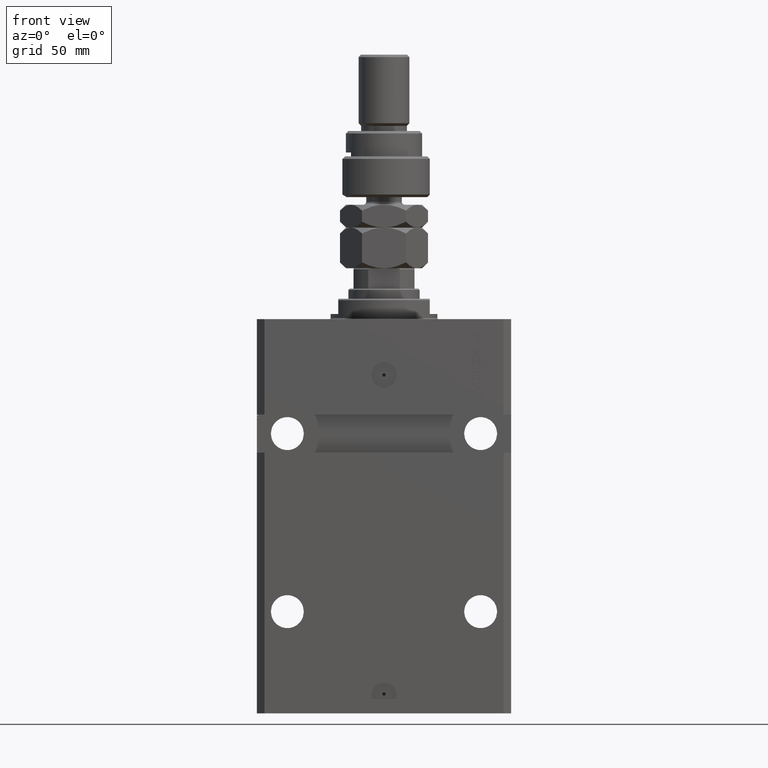
[diagram: clean part render]
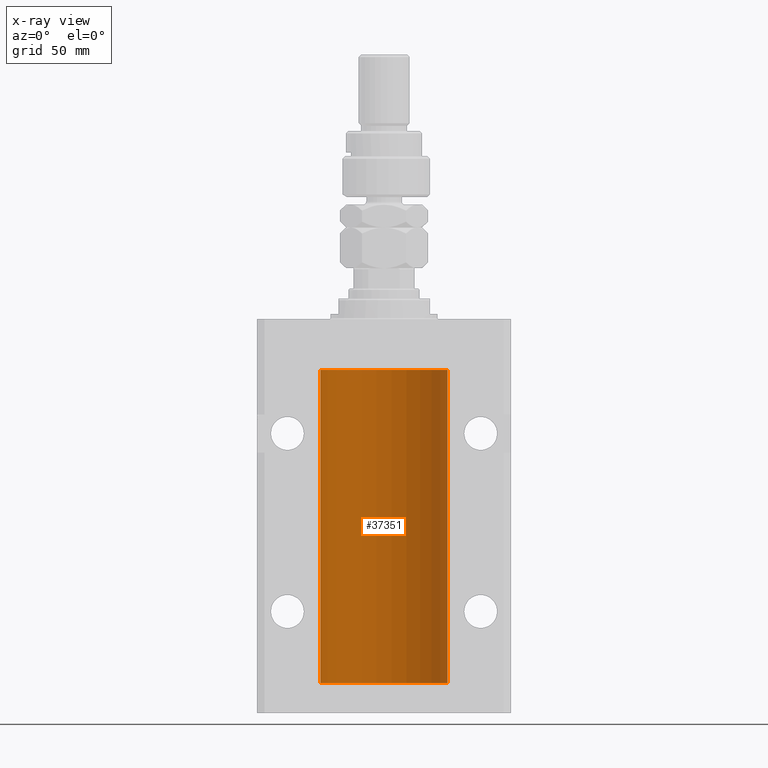
[diagram: x-ray — body ghosted, one internal face saturated and labeled with its STEP entity id]
A machine part, front view, then the same camera in x-ray: the body is ghosted and one INTERNAL B-rep face — a face not visible from any outside direction — is saturated and labeled: STEP entity #37351.
In plain terms, the highlighted cylindrical surface (partial cylindrical patch) has radius 25 mm, axis along (0, 0, 1).
Its self-contained STEP definition (entity closure, byte-faithful):
#88 = CARTESIAN_POINT ( 'NONE',  ( -25.00000000000000000, 3.061616997868383043E-15, -143.0999999999999943 ) ) ;
#330 = LINE ( 'NONE', #23541, #5642 ) ;
#1076 = EDGE_CURVE ( 'NONE', #25890, #24481, #26158, .T. ) ;
#1591 = CARTESIAN_POINT ( 'NONE',  ( -24.99402840204668408, 0.5587119681668532012, -25.32511555871104747 ) ) ;
#1836 = CARTESIAN_POINT ( 'NONE',  ( -25.00000000000000000, -9.603917560234690571E-15, -24.37500000000000000 ) ) ;
#2135 = CARTESIAN_POINT ( 'NONE',  ( -25.00000000000000000, -2.240465332326360227E-14, -139.8749999999999716 ) ) ;
#2296 = LINE ( 'NONE', #40059, #4495 ) ;
#2555 = VERTEX_POINT ( 'NONE', #42616 ) ;
#2622 = EDGE_LOOP ( 'NONE', ( #20381, #25508, #23748, #46782, #39872, #17711, #28426, #4560, #44794, #48523, #12035, #40864, #34065, #22913 ) ) ;
#3431 = DIRECTION ( 'NONE',  ( -0.000000000000000000, -0.000000000000000000, 1.000000000000000000 ) ) ;
#3442 = CARTESIAN_POINT ( 'NONE',  ( -25.00000000000008171, 3.517566533863564531E-13, -141.1250000000032685 ) ) ;
#3478 = EDGE_CURVE ( 'NONE', #36610, #31197, #27093, .T. ) ;
#4195 = DIRECTION ( 'NONE',  ( 0.000000000000000000, 0.000000000000000000, 1.000000000000000000 ) ) ;
#4495 = VECTOR ( 'NONE', #9244, 1000.000000000000000 ) ;
#4523 = CIRCLE ( 'NONE', #14774, 25.00000000000000000 ) ;
#4560 = ORIENTED_EDGE ( 'NONE', *, *, #27789, .T. ) ;
#4717 = VERTEX_POINT ( 'NONE', #37972 ) ;
#4921 = EDGE_CURVE ( 'NONE', #6316, #25890, #43834, .T. ) ;
#5331 = EDGE_CURVE ( 'NONE', #39972, #31479, #330, .T. ) ;
#5503 = CARTESIAN_POINT ( 'NONE',  ( 25.00000000000000000, 2.614778811499482268E-15, -141.1249999999999716 ) ) ;
#5642 = VECTOR ( 'NONE', #15412, 1000.000000000000000 ) ;
#5744 = CARTESIAN_POINT ( 'NONE',  ( 24.99405112861447620, 0.5574133879603465624, -140.8263877786897922 ) ) ;
#5779 = CARTESIAN_POINT ( 'NONE',  ( -24.99812965334069403, 0.3150303239408847600, -24.45401901831676383 ) ) ;
#6316 = VERTEX_POINT ( 'NONE', #9456 ) ;
#6456 = CARTESIAN_POINT ( 'NONE',  ( 24.99218627891505307, 0.6250000000082404084, -140.4999999999990337 ) ) ;
#6820 = DIRECTION ( 'NONE',  ( -0.000000000000000000, -0.000000000000000000, 1.000000000000000000 ) ) ;
#6839 = CARTESIAN_POINT ( 'NONE',  ( 25.00000000000000000, 2.614778811499482268E-15, -141.1249999999999716 ) ) ;
#7539 = B_SPLINE_CURVE_WITH_KNOTS ( 'NONE', 3,
 ( #5503, #9710, #39333, #39569, #20582, #5744, #28242, #27757 ),
 .UNSPECIFIED., .F., .F.,
 ( 4, 2, 2, 4 ),
 ( 2.541064289066469745E-18, 0.0002443193446654819763, 0.0004886386893309612421, 0.0009772773786619198821 ),
 .UNSPECIFIED. ) ;
#7844 = CARTESIAN_POINT ( 'NONE',  ( -24.99402840204668053, 0.5587119681668447635, -140.8251155587110190 ) ) ;
#8091 = CARTESIAN_POINT ( 'NONE',  ( -24.99815474281803063, 0.3253832813992108552, -141.0585560939375682 ) ) ;
#9244 = DIRECTION ( 'NONE',  ( -0.000000000000000000, -0.000000000000000000, 1.000000000000000000 ) ) ;
#9456 = CARTESIAN_POINT ( 'NONE',  ( 25.00000000000008171, 3.486950283966777142E-13, -24.37499999999673150 ) ) ;
#9498 = CARTESIAN_POINT ( 'NONE',  ( 24.99815573945175373, 0.3253059702579643164, -24.44140848432692081 ) ) ;
#9500 = CARTESIAN_POINT ( 'NONE',  ( -24.99218772708281477, 0.6249420913990341164, -24.83671206966754852 ) ) ;
#9710 = CARTESIAN_POINT ( 'NONE',  ( 25.00000000000000355, 0.08261259269783456649, -141.1249999999999716 ) ) ;
#10447 = CARTESIAN_POINT ( 'NONE',  ( -25.00000000000000000, 3.061616997868383043E-15, -143.0999999999999943 ) ) ;
#10739 = DIRECTION ( 'NONE',  ( -0.000000000000000000, -0.000000000000000000, 1.000000000000000000 ) ) ;
#10761 = EDGE_CURVE ( 'NONE', #32499, #2555, #32527, .T. ) ;
#10933 = CARTESIAN_POINT ( 'NONE',  ( 24.99218627891526268, 0.6249999999996136424, -140.3369677794013057 ) ) ;
#10958 = B_SPLINE_CURVE_WITH_KNOTS ( 'NONE', 3,
 ( #25042, #28275, #32209, #9498, #17159, #40077 ),
 .UNSPECIFIED., .F., .F.,
 ( 4, 2, 4 ),
 ( 0.0009772773786619066549, 0.001465694572771589731, 0.001954111766881272590 ),
 .UNSPECIFIED. ) ;
#11227 = CARTESIAN_POINT ( 'NONE',  ( 24.99711042419772156, 0.3844422150124101600, -25.49948233212517934 ) ) ;
#12035 = ORIENTED_EDGE ( 'NONE', *, *, #29499, .F. ) ;
#12786 = CARTESIAN_POINT ( 'NONE',  ( 25.00000000000000000, -1.442320223331113572E-15, -25.62500000000000355 ) ) ;
#12811 = CARTESIAN_POINT ( 'NONE',  ( 0.000000000000000000, 0.000000000000000000, -143.0999999999999943 ) ) ;
#13907 = VERTEX_POINT ( 'NONE', #30010 ) ;
#14774 = AXIS2_PLACEMENT_3D ( 'NONE', #12811, #35271, #29962 ) ;
#15124 = CARTESIAN_POINT ( 'NONE',  ( 24.99218627891505307, 0.6250000000082325258, -24.99999999999907629 ) ) ;
#15412 = DIRECTION ( 'NONE',  ( -0.000000000000000000, -0.000000000000000000, 1.000000000000000000 ) ) ;
#15758 = CARTESIAN_POINT ( 'NONE',  ( -25.00000000000000000, -2.240465332326360227E-14, -139.8749999999999716 ) ) ;
#15769 = CARTESIAN_POINT ( 'NONE',  ( 25.00000000000000000, -1.442320223331113572E-15, -25.62500000000000355 ) ) ;
#16762 = EDGE_CURVE ( 'NONE', #13907, #39330, #2296, .T. ) ;
#17159 = CARTESIAN_POINT ( 'NONE',  ( 24.99999999999999645, 0.1631302137355186421, -24.37500000000015277 ) ) ;
#17160 = CARTESIAN_POINT ( 'NONE',  ( -25.00000000000001421, 0.08259386895071110790, -24.37500000000000000 ) ) ;
#17273 = VECTOR ( 'NONE', #6820, 1000.000000000000000 ) ;
#17392 = CARTESIAN_POINT ( 'NONE',  ( -25.00000000000008171, 3.517566455281406338E-13, -25.62500000000326850 ) ) ;
#17711 = ORIENTED_EDGE ( 'NONE', *, *, #16762, .T. ) ;
#18513 = DIRECTION ( 'NONE',  ( 1.000000000000000000, 0.000000000000000000, 0.000000000000000000 ) ) ;
#19247 = CYLINDRICAL_SURFACE ( 'NONE', #47327, 25.00000000000000000 ) ;
#19514 = VERTEX_POINT ( 'NONE', #15124 ) ;
#20187 = CARTESIAN_POINT ( 'NONE',  ( -24.99957903978827289, 0.1636401650351609061, -139.8912625904797835 ) ) ;
#20381 = ORIENTED_EDGE ( 'NONE', *, *, #36984, .F. ) ;
#20582 = CARTESIAN_POINT ( 'NONE',  ( 24.99711042419772156, 0.3844422150124143789, -140.9994823321251260 ) ) ;
#20715 = VERTEX_POINT ( 'NONE', #10447 ) ;
#20923 = EDGE_CURVE ( 'NONE', #39972, #20715, #4523, .T. ) ;
#21591 = CARTESIAN_POINT ( 'NONE',  ( 24.99218627891525912, 0.6250000000003174128, -25.16310615504829684 ) ) ;
#22874 = CARTESIAN_POINT ( 'NONE',  ( -25.00000000000000000, 3.061616997868383043E-15, -143.0999999999999943 ) ) ;
#22913 = ORIENTED_EDGE ( 'NONE', *, *, #3478, .T. ) ;
#23164 = CARTESIAN_POINT ( 'NONE',  ( -25.00000000000001066, 0.08259386895069469048, -139.8750000000000000 ) ) ;
#23541 = CARTESIAN_POINT ( 'NONE',  ( 25.00000000000000000, 0.000000000000000000, -143.0999999999999943 ) ) ;
#23643 = CARTESIAN_POINT ( 'NONE',  ( -25.00000000000000355, 0.1631672031814576096, -141.1249999999998579 ) ) ;
#23748 = ORIENTED_EDGE ( 'NONE', *, *, #5331, .T. ) ;
#23918 = B_SPLINE_CURVE_WITH_KNOTS ( 'NONE', 3,
 ( #12786, #27856, #33705, #40835, #11227, #25797, #21591, #48718 ),
 .UNSPECIFIED., .F., .F.,
 ( 4, 2, 2, 4 ),
 ( 2.549843088221324396E-18, 0.0002443193446654768263, 0.0004886386893309511590, 0.0009772773786619066549 ),
 .UNSPECIFIED. ) ;
#24104 = CARTESIAN_POINT ( 'NONE',  ( 25.00000000000000000, 0.000000000000000000, -20.00000000000000355 ) ) ;
#24481 = VERTEX_POINT ( 'NONE', #27672 ) ;
#24554 = CARTESIAN_POINT ( 'NONE',  ( -24.99957903978827289, 0.1636401650351867743, -24.39126259047981904 ) ) ;
#25042 = CARTESIAN_POINT ( 'NONE',  ( 24.99218627891505307, 0.6250000000082325258, -24.99999999999907629 ) ) ;
#25508 = ORIENTED_EDGE ( 'NONE', *, *, #20923, .F. ) ;
#25797 = CARTESIAN_POINT ( 'NONE',  ( 24.99405112861447265, 0.5574133879603401232, -25.32638777868981705 ) ) ;
#25890 = VERTEX_POINT ( 'NONE', #24104 ) ;
#26158 = CIRCLE ( 'NONE', #48180, 25.00000000000000000 ) ;
#26262 = EDGE_CURVE ( 'NONE', #31479, #4717, #7539, .T. ) ;
#26472 = CARTESIAN_POINT ( 'NONE',  ( 24.99815573945175373, 0.3253059702579825241, -139.9414084843268711 ) ) ;
#26861 = CARTESIAN_POINT ( 'NONE',  ( -24.99812965334070114, 0.3150303239408628886, -139.9540190183167283 ) ) ;
#26883 = CARTESIAN_POINT ( 'NONE',  ( 0.000000000000000000, 0.000000000000000000, -143.0999999999999943 ) ) ;
#26946 = DIRECTION ( 'NONE',  ( -0.000000000000000000, -0.000000000000000000, 1.000000000000000000 ) ) ;
#27093 = B_SPLINE_CURVE_WITH_KNOTS ( 'NONE', 3,
 ( #15758, #23164, #20187, #26861, #38931, #46556, #41906, #45834, #7844, #8091, #23643, #30821 ),
 .UNSPECIFIED., .F., .F.,
 ( 4, 2, 2, 2, 2, 4 ),
 ( 4.721047839748243682E-18, 0.0002442639708601545201, 0.0004885279417203043780, 0.0009770558834406627494, 0.001465583825161021012, 0.001954111766881379275 ),
 .UNSPECIFIED. ) ;
#27672 = CARTESIAN_POINT ( 'NONE',  ( -25.00000000000000000, 3.061616997868383043E-15, -20.00000000000000355 ) ) ;
#27757 = CARTESIAN_POINT ( 'NONE',  ( 24.99218627891505307, 0.6250000000082404084, -140.4999999999990337 ) ) ;
#27783 = VECTOR ( 'NONE', #26946, 1000.000000000000000 ) ;
#27789 = EDGE_CURVE ( 'NONE', #19514, #6316, #10958, .T. ) ;
#27856 = CARTESIAN_POINT ( 'NONE',  ( 25.00000000000000355, 0.08261259269783240156, -25.62499999999998579 ) ) ;
#28242 = CARTESIAN_POINT ( 'NONE',  ( 24.99218627891525912, 0.6250000000003231859, -140.6631061550482684 ) ) ;
#28275 = CARTESIAN_POINT ( 'NONE',  ( 24.99218627891526268, 0.6249999999996038724, -24.83696777940135192 ) ) ;
#28426 = ORIENTED_EDGE ( 'NONE', *, *, #39464, .T. ) ;
#28565 = DIRECTION ( 'NONE',  ( -0.000000000000000000, -0.000000000000000000, 1.000000000000000000 ) ) ;
#29499 = EDGE_CURVE ( 'NONE', #32499, #24481, #41625, .T. ) ;
#29951 = CARTESIAN_POINT ( 'NONE',  ( 24.99999999999999645, 0.1631302137355212234, -139.8750000000001137 ) ) ;
#29962 = DIRECTION ( 'NONE',  ( 1.000000000000000000, 0.000000000000000000, 0.000000000000000000 ) ) ;
#30010 = CARTESIAN_POINT ( 'NONE',  ( 25.00000000000008171, 3.486950366684838397E-13, -139.8749999999966747 ) ) ;
#30157 = VECTOR ( 'NONE', #28565, 1000.000000000000000 ) ;
#30391 = CARTESIAN_POINT ( 'NONE',  ( 0.000000000000000000, 0.000000000000000000, -20.00000000000000355 ) ) ;
#30821 = CARTESIAN_POINT ( 'NONE',  ( -25.00000000000008171, 3.517566533863564531E-13, -141.1250000000032685 ) ) ;
#30867 = EDGE_CURVE ( 'NONE', #4717, #13907, #35549, .T. ) ;
#31197 = VERTEX_POINT ( 'NONE', #3442 ) ;
#31479 = VERTEX_POINT ( 'NONE', #6839 ) ;
#32209 = CARTESIAN_POINT ( 'NONE',  ( 24.99403021173655404, 0.5586305782632566830, -24.67476111441487063 ) ) ;
#32210 = CARTESIAN_POINT ( 'NONE',  ( -24.99405295648008263, 0.5573304927633336847, -24.67348832933669200 ) ) ;
#32380 = VECTOR ( 'NONE', #10739, 1000.000000000000000 ) ;
#32499 = VERTEX_POINT ( 'NONE', #41762 ) ;
#32527 = B_SPLINE_CURVE_WITH_KNOTS ( 'NONE', 3,
 ( #1836, #17160, #24554, #5779, #46996, #32210, #9500, #35187, #1591, #43528, #36151, #17392 ),
 .UNSPECIFIED., .F., .F.,
 ( 4, 2, 2, 2, 2, 4 ),
 ( 4.396951630244787669E-19, 0.0002442639708601663379, 0.0004885279417203322420, 0.0009770558834406712061, 0.001465583825161009953, 0.001954111766881348917 ),
 .UNSPECIFIED. ) ;
#33705 = CARTESIAN_POINT ( 'NONE',  ( 24.99957883295563832, 0.1636780489658725135, -25.60872961334235498 ) ) ;
#33898 = CARTESIAN_POINT ( 'NONE',  ( 25.00000000000008171, 3.486950366684838397E-13, -139.8749999999966747 ) ) ;
#34065 = ORIENTED_EDGE ( 'NONE', *, *, #39927, .F. ) ;
#35187 = CARTESIAN_POINT ( 'NONE',  ( -24.99218483271614843, 0.6250578298876515726, -25.16284432778144975 ) ) ;
#35271 = DIRECTION ( 'NONE',  ( 0.000000000000000000, 0.000000000000000000, 1.000000000000000000 ) ) ;
#35549 = B_SPLINE_CURVE_WITH_KNOTS ( 'NONE', 3,
 ( #6456, #10933, #41283, #26472, #29951, #33898 ),
 .UNSPECIFIED., .F., .F.,
 ( 4, 2, 4 ),
 ( 0.0009772773786619198821, 0.001465694572771615535, 0.001954111766881311187 ),
 .UNSPECIFIED. ) ;
#36151 = CARTESIAN_POINT ( 'NONE',  ( -24.99999999999998934, 0.1631672031814573320, -25.62499999999985079 ) ) ;
#36452 = CARTESIAN_POINT ( 'NONE',  ( 25.00000000000000000, 0.000000000000000000, -143.0999999999999943 ) ) ;
#36610 = VERTEX_POINT ( 'NONE', #2135 ) ;
#36900 = LINE ( 'NONE', #88, #32380 ) ;
#36984 = EDGE_CURVE ( 'NONE', #20715, #31197, #36900, .T. ) ;
#37351 = ADVANCED_FACE ( 'NONE', ( #45380 ), #19247, .F. ) ;
#37972 = CARTESIAN_POINT ( 'NONE',  ( 24.99218627891505307, 0.6250000000082404084, -140.4999999999990337 ) ) ;
#38726 = DIRECTION ( 'NONE',  ( 1.000000000000000000, 0.000000000000000000, 0.000000000000000000 ) ) ;
#38931 = CARTESIAN_POINT ( 'NONE',  ( -24.99711159039964059, 0.3843660423108676838, -140.0004619305507561 ) ) ;
#39330 = VERTEX_POINT ( 'NONE', #15769 ) ;
#39333 = CARTESIAN_POINT ( 'NONE',  ( 24.99957883295564898, 0.1636780489658682114, -141.1087296133423195 ) ) ;
#39464 = EDGE_CURVE ( 'NONE', #39330, #19514, #23918, .T. ) ;
#39569 = CARTESIAN_POINT ( 'NONE',  ( 24.99812887437770570, 0.3150953964768980486, -141.0459460934856111 ) ) ;
#39872 = ORIENTED_EDGE ( 'NONE', *, *, #30867, .T. ) ;
#39927 = EDGE_CURVE ( 'NONE', #36610, #2555, #45444, .T. ) ;
#39972 = VERTEX_POINT ( 'NONE', #42474 ) ;
#40059 = CARTESIAN_POINT ( 'NONE',  ( 25.00000000000000000, 0.000000000000000000, -143.0999999999999943 ) ) ;
#40077 = CARTESIAN_POINT ( 'NONE',  ( 25.00000000000008171, 3.486950283966777142E-13, -24.37499999999673150 ) ) ;
#40835 = CARTESIAN_POINT ( 'NONE',  ( 24.99812887437770570, 0.3150953964769008242, -25.54594609348566792 ) ) ;
#40864 = ORIENTED_EDGE ( 'NONE', *, *, #10761, .T. ) ;
#41283 = CARTESIAN_POINT ( 'NONE',  ( 24.99403021173655404, 0.5586305782632735584, -140.1747611144148209 ) ) ;
#41625 = LINE ( 'NONE', #22874, #17273 ) ;
#41746 = CARTESIAN_POINT ( 'NONE',  ( -25.00000000000000000, 3.061616997868383043E-15, -143.0999999999999943 ) ) ;
#41762 = CARTESIAN_POINT ( 'NONE',  ( -25.00000000000000000, -9.603917560234690571E-15, -24.37500000000000000 ) ) ;
#41906 = CARTESIAN_POINT ( 'NONE',  ( -24.99218772708281477, 0.6249420913990210158, -140.3367120696675556 ) ) ;
#42474 = CARTESIAN_POINT ( 'NONE',  ( 25.00000000000000000, 0.000000000000000000, -143.0999999999999943 ) ) ;
#42616 = CARTESIAN_POINT ( 'NONE',  ( -25.00000000000008171, 3.517566455281406338E-13, -25.62500000000326850 ) ) ;
#43528 = CARTESIAN_POINT ( 'NONE',  ( -24.99815474281801997, 0.3253832813992120210, -25.55855609393753269 ) ) ;
#43834 = LINE ( 'NONE', #36452, #30157 ) ;
#44794 = ORIENTED_EDGE ( 'NONE', *, *, #4921, .T. ) ;
#45380 = FACE_OUTER_BOUND ( 'NONE', #2622, .T. ) ;
#45444 = LINE ( 'NONE', #41746, #27783 ) ;
#45834 = CARTESIAN_POINT ( 'NONE',  ( -24.99218483271614843, 0.6250578298876459105, -140.6628443277814142 ) ) ;
#46556 = CARTESIAN_POINT ( 'NONE',  ( -24.99405295648007552, 0.5573304927633233596, -140.1734883293366067 ) ) ;
#46782 = ORIENTED_EDGE ( 'NONE', *, *, #26262, .T. ) ;
#46996 = CARTESIAN_POINT ( 'NONE',  ( -24.99711159039964414, 0.3843660423108813950, -24.50046193055078803 ) ) ;
#47327 = AXIS2_PLACEMENT_3D ( 'NONE', #26883, #3431, #18513 ) ;
#48180 = AXIS2_PLACEMENT_3D ( 'NONE', #30391, #4195, #38726 ) ;
#48523 = ORIENTED_EDGE ( 'NONE', *, *, #1076, .T. ) ;
#48718 = CARTESIAN_POINT ( 'NONE',  ( 24.99218627891505307, 0.6250000000082325258, -24.99999999999907629 ) ) ;